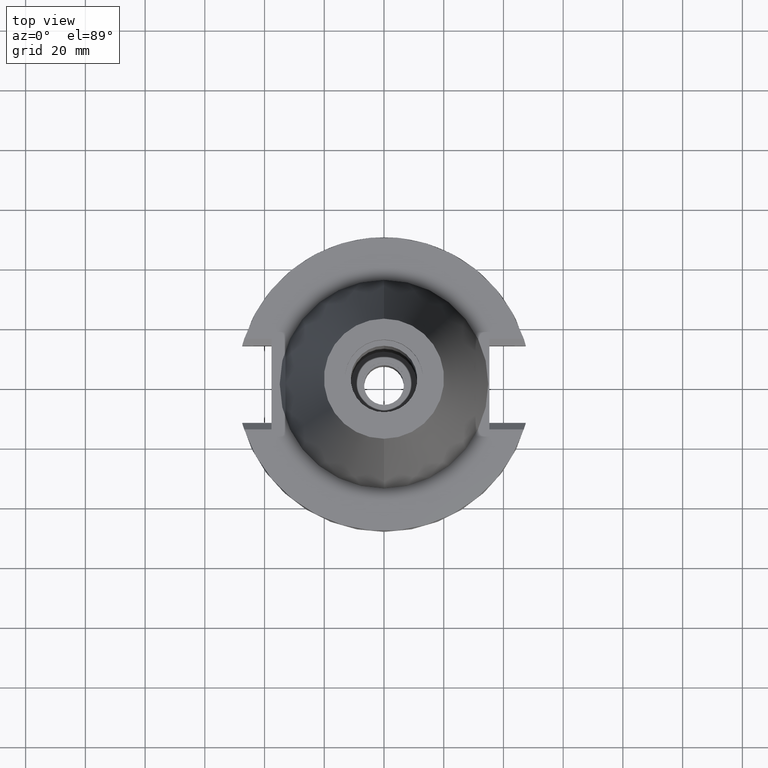
[diagram: clean part render]
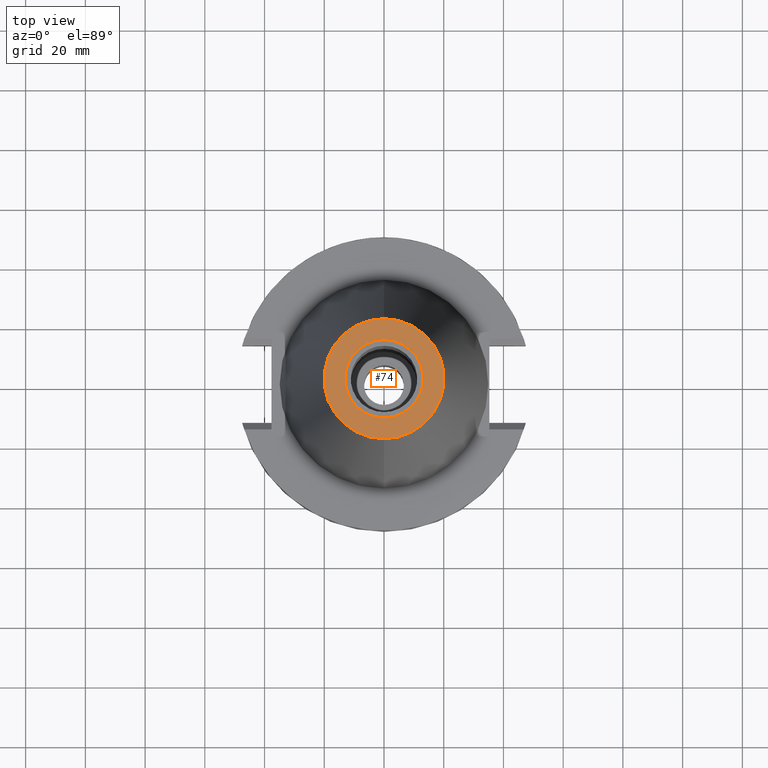
[diagram: same view with one face highlighted and labeled with its STEP entity id]
A machine part, top view. The second image highlights one B-rep face of the part: STEP entity #74.
In plain terms, the highlighted planar face has unit normal (0, 0, -1).
Its self-contained STEP definition (entity closure, byte-faithful):
#46 = CARTESIAN_POINT ( 'NONE',  ( 0.0000000000000000000, 13.11500000000000021, 101.5999999999999943 ) ) ;
#74 = ADVANCED_FACE ( 'NONE', ( #538, #2620 ), #1530, .F. ) ;
#106 = CARTESIAN_POINT ( 'NONE',  ( 0.0000000000000000000, -20.10832422388000040, 101.5999999999999943 ) ) ;
#129 = AXIS2_PLACEMENT_3D ( 'NONE', #1257, #3351, #2369 ) ;
#250 = ORIENTED_EDGE ( 'NONE', *, *, #319, .F. ) ;
#283 = DIRECTION ( 'NONE',  ( 0.0000000000000000000, 0.0000000000000000000, -1.000000000000000000 ) ) ;
#319 = EDGE_CURVE ( 'NONE', #2710, #1024, #2130, .T. ) ;
#324 = DIRECTION ( 'NONE',  ( 0.0000000000000000000, 0.0000000000000000000, -1.000000000000000000 ) ) ;
#360 = EDGE_CURVE ( 'NONE', #1024, #2710, #1426, .T. ) ;
#538 = FACE_OUTER_BOUND ( 'NONE', #3055, .T. ) ;
#546 = AXIS2_PLACEMENT_3D ( 'NONE', #2885, #283, #560 ) ;
#560 = DIRECTION ( 'NONE',  ( 0.0000000000000000000, -1.000000000000000000, 0.0000000000000000000 ) ) ;
#633 = VERTEX_POINT ( 'NONE', #106 ) ;
#825 = AXIS2_PLACEMENT_3D ( 'NONE', #2493, #1430, #2582 ) ;
#887 = CARTESIAN_POINT ( 'NONE',  ( 0.0000000000000000000, 1.846767373113999857E-14, 101.5999999999999943 ) ) ;
#1024 = VERTEX_POINT ( 'NONE', #2132 ) ;
#1039 = ORIENTED_EDGE ( 'NONE', *, *, #2922, .F. ) ;
#1123 = ORIENTED_EDGE ( 'NONE', *, *, #3238, .F. ) ;
#1162 = AXIS2_PLACEMENT_3D ( 'NONE', #887, #324, #2166 ) ;
#1257 = CARTESIAN_POINT ( 'NONE',  ( 0.0000000000000000000, 1.846767373113999857E-14, 101.5999999999999943 ) ) ;
#1426 = CIRCLE ( 'NONE', #825, 13.11500000000000021 ) ;
#1430 = DIRECTION ( 'NONE',  ( 0.0000000000000000000, 0.0000000000000000000, 1.000000000000000000 ) ) ;
#1530 = PLANE ( 'NONE',  #546 ) ;
#1545 = DIRECTION ( 'NONE',  ( 0.0000000000000000000, 1.000000000000000000, 0.0000000000000000000 ) ) ;
#1713 = CIRCLE ( 'NONE', #129, 20.10832422388000040 ) ;
#1739 = CARTESIAN_POINT ( 'NONE',  ( 0.0000000000000000000, 20.10832422388000040, 101.5999999999999943 ) ) ;
#2064 = DIRECTION ( 'NONE',  ( 0.0000000000000000000, 0.0000000000000000000, 1.000000000000000000 ) ) ;
#2130 = CIRCLE ( 'NONE', #2463, 13.11500000000000021 ) ;
#2132 = CARTESIAN_POINT ( 'NONE',  ( 0.0000000000000000000, -13.11500000000000021, 101.5999999999999943 ) ) ;
#2166 = DIRECTION ( 'NONE',  ( 0.0000000000000000000, 1.000000000000000000, 0.0000000000000000000 ) ) ;
#2369 = DIRECTION ( 'NONE',  ( 0.0000000000000000000, -1.000000000000000000, 0.0000000000000000000 ) ) ;
#2463 = AXIS2_PLACEMENT_3D ( 'NONE', #2821, #2064, #1545 ) ;
#2493 = CARTESIAN_POINT ( 'NONE',  ( 0.0000000000000000000, 2.588719636377999795E-14, 101.5999999999999943 ) ) ;
#2582 = DIRECTION ( 'NONE',  ( 0.0000000000000000000, -1.000000000000000000, 0.0000000000000000000 ) ) ;
#2620 = FACE_BOUND ( 'NONE', #3120, .T. ) ;
#2670 = ORIENTED_EDGE ( 'NONE', *, *, #360, .F. ) ;
#2710 = VERTEX_POINT ( 'NONE', #46 ) ;
#2821 = CARTESIAN_POINT ( 'NONE',  ( 0.0000000000000000000, 2.588719636377999795E-14, 101.5999999999999943 ) ) ;
#2885 = CARTESIAN_POINT ( 'NONE',  ( 0.0000000000000000000, 2.468887947081000065E-14, 101.5999999999999943 ) ) ;
#2922 = EDGE_CURVE ( 'NONE', #3127, #633, #3163, .T. ) ;
#3055 = EDGE_LOOP ( 'NONE', ( #1039, #1123 ) ) ;
#3120 = EDGE_LOOP ( 'NONE', ( #250, #2670 ) ) ;
#3127 = VERTEX_POINT ( 'NONE', #1739 ) ;
#3163 = CIRCLE ( 'NONE', #1162, 20.10832422388000040 ) ;
#3238 = EDGE_CURVE ( 'NONE', #633, #3127, #1713, .T. ) ;
#3351 = DIRECTION ( 'NONE',  ( 0.0000000000000000000, 0.0000000000000000000, -1.000000000000000000 ) ) ;